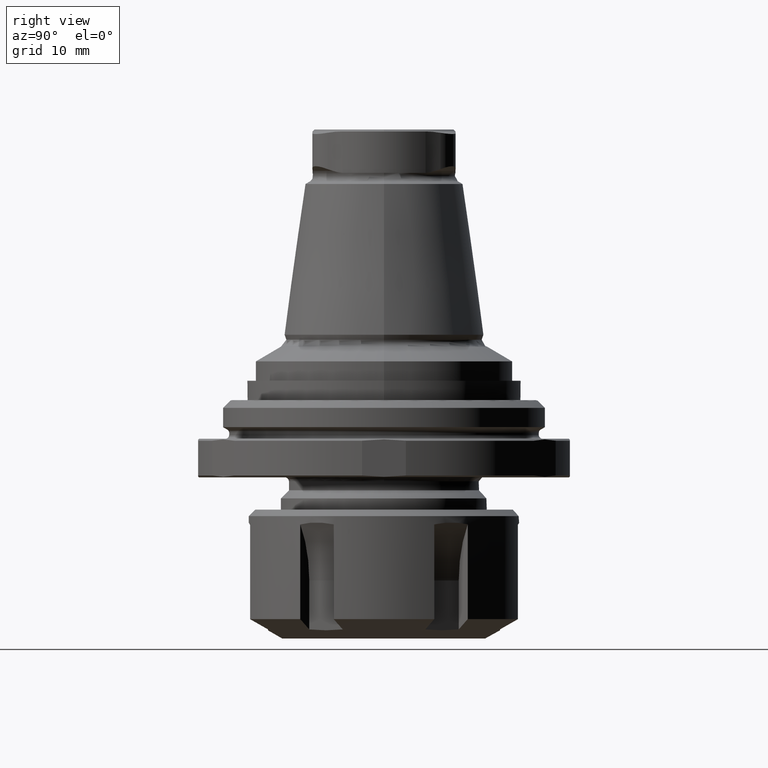
[diagram: clean part render]
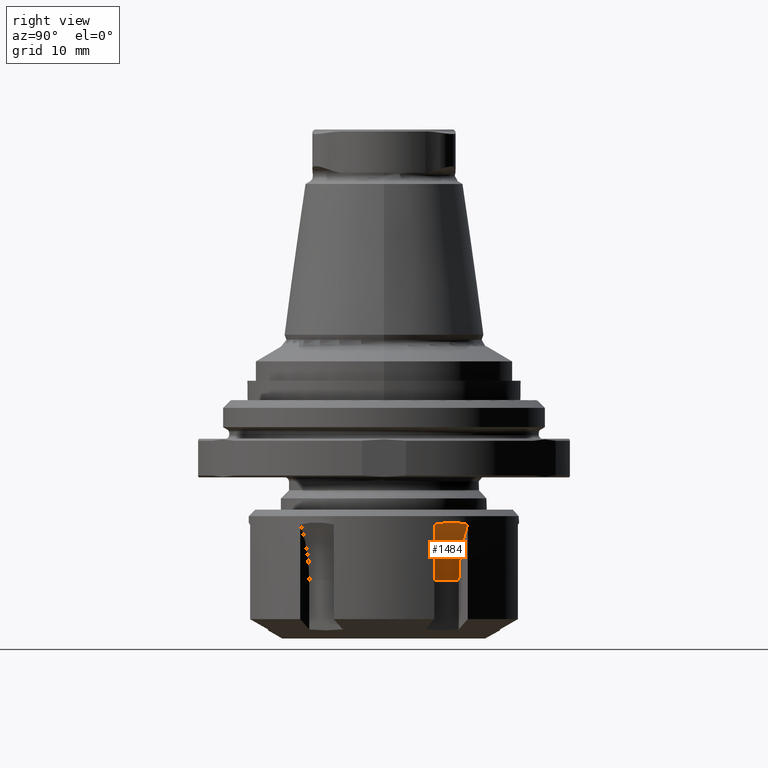
[diagram: same view with one face highlighted and labeled with its STEP entity id]
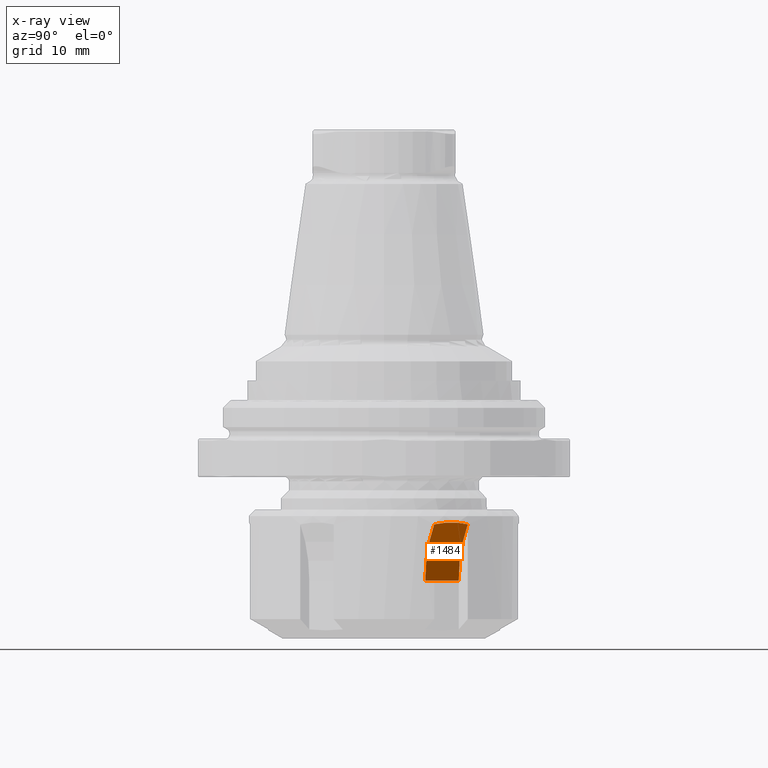
[diagram: x-ray of the same camera — body ghosted, the highlighted face saturated]
A machine part, right view. The second image highlights one B-rep face of the part: STEP entity #1484.
The next image is the same camera in x-ray: the body ghosted, the highlighted face saturated — about 0% of this face is hidden behind the body in this view.
In plain terms, the highlighted cylindrical surface (partial cylindrical patch) has radius 15 mm, axis along (-0.5, 0.866, 0).
Its self-contained STEP definition (entity closure, byte-faithful):
#26=B_SPLINE_CURVE_WITH_KNOTS('',3,(#2316,#2317,#2318,#2319,#2320),
 .UNSPECIFIED.,.F.,.F.,(4,1,4),(0.,0.00300849357715145,0.00601698715430291),
 .UNSPECIFIED.);
#96=LINE('',#2312,#154);
#154=VECTOR('',#1846,1000.);
#256=CYLINDRICAL_SURFACE('',#1618,15.);
#315=ORIENTED_EDGE('',*,*,#741,.F.);
#316=ORIENTED_EDGE('',*,*,#742,.T.);
#317=ORIENTED_EDGE('',*,*,#743,.T.);
#318=ORIENTED_EDGE('',*,*,#744,.F.);
#741=EDGE_CURVE('',#956,#957,#1097,.T.);
#742=EDGE_CURVE('',#956,#958,#96,.T.);
#743=EDGE_CURVE('',#958,#959,#1098,.T.);
#744=EDGE_CURVE('',#957,#959,#26,.T.);
#956=VERTEX_POINT('',#2310);
#957=VERTEX_POINT('',#2311);
#958=VERTEX_POINT('',#2313);
#959=VERTEX_POINT('',#2315);
#1097=CIRCLE('',#1619,15.);
#1098=CIRCLE('',#1620,15.);
#1183=EDGE_LOOP('',(#315,#316,#317,#318));
#1323=FACE_BOUND('',#1183,.T.);
#1484=ADVANCED_FACE('',(#1323),#256,.F.);
#1618=AXIS2_PLACEMENT_3D('',#2308,#1842,#1843);
#1619=AXIS2_PLACEMENT_3D('',#2309,#1844,#1845);
#1620=AXIS2_PLACEMENT_3D('',#2314,#1847,#1848);
#1842=DIRECTION('',(-0.500000000000001,0.866025403784438,0.));
#1843=DIRECTION('',(0.866025403784438,0.500000000000001,0.));
#1844=DIRECTION('',(-0.500000000000001,0.866025403784438,0.));
#1845=DIRECTION('',(0.,0.,-1.));
#1846=DIRECTION('',(-0.500000000000001,0.866025403784438,0.));
#1847=DIRECTION('',(-0.500000000000001,0.866025403784438,0.));
#1848=DIRECTION('',(0.,0.,-1.));
#2308=CARTESIAN_POINT('',(30.0788383248865,13.9019237886467,-23.));
#2309=CARTESIAN_POINT('',(30.0788383248865,13.9019237886467,-23.));
#2310=CARTESIAN_POINT('',(17.0884572681199,6.40192378864671,-23.));
#2311=CARTESIAN_POINT('',(19.5,7.79422863405998,-14.2945856161495));
#2312=CARTESIAN_POINT('',(17.0884572681199,6.40192378864671,-23.));
#2313=CARTESIAN_POINT('',(14.0884572681199,11.5980762113533,-23.));
#2314=CARTESIAN_POINT('',(27.0788383248864,19.0980762113534,-23.));
#2315=CARTESIAN_POINT('',(16.5,12.9903810567666,-14.2945856161495));
#2316=CARTESIAN_POINT('',(19.5,7.79422863405998,-14.2945856161495));
#2317=CARTESIAN_POINT('',(19.1297716875417,8.72048476945078,-14.094629063539));
#2318=CARTESIAN_POINT('',(18.2601268181617,10.5183390008062,-13.9053511626417));
#2319=CARTESIAN_POINT('',(17.1168828320739,12.2068346246227,-14.0946823235346));
#2320=CARTESIAN_POINT('',(16.5,12.9903810567666,-14.2945856161495));